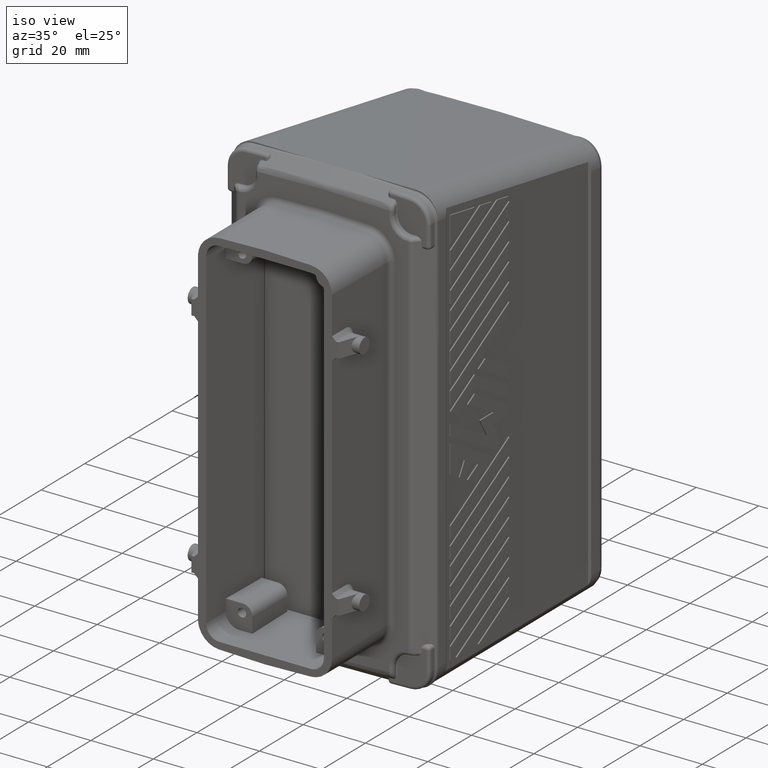
[diagram: clean part render]
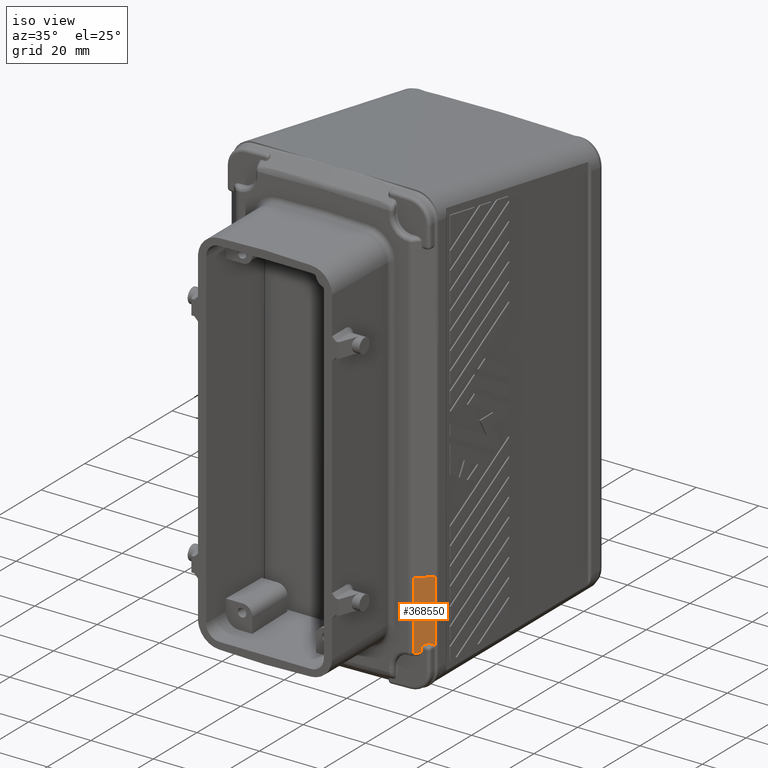
[diagram: same view with one face highlighted and labeled with its STEP entity id]
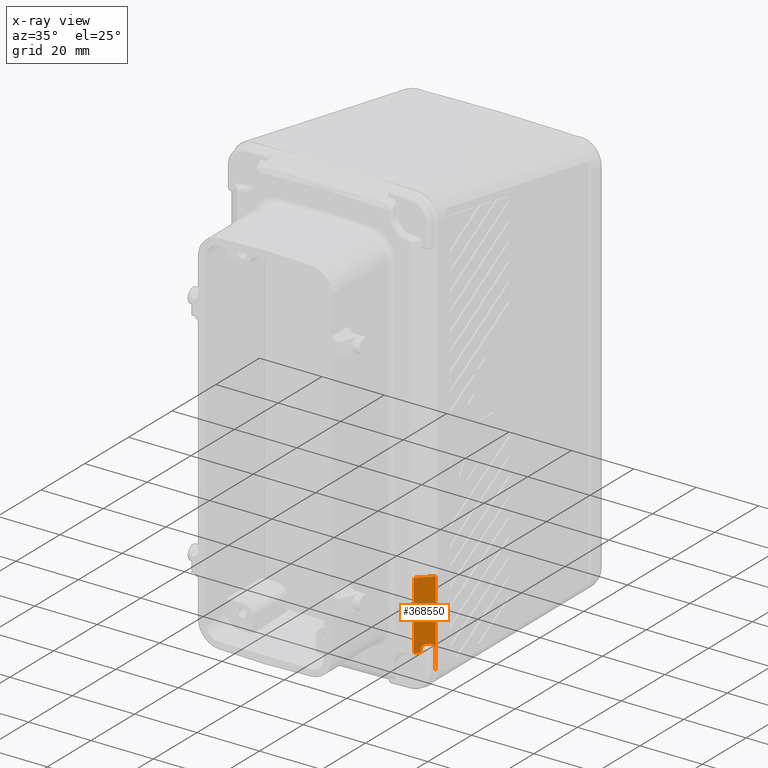
[diagram: x-ray of the same camera — body ghosted, the highlighted face saturated]
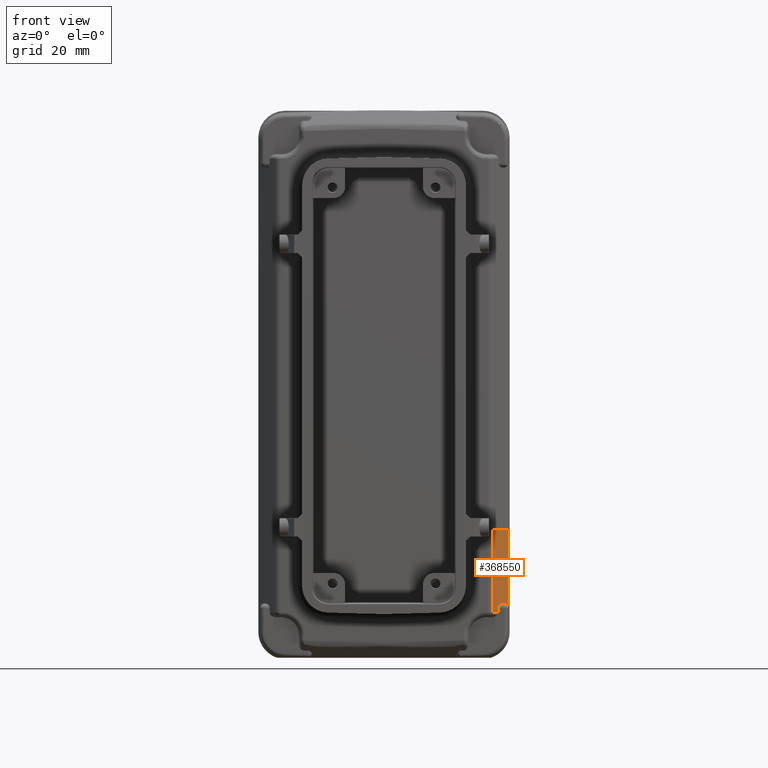
[diagram: same view with one face highlighted and labeled with its STEP entity id]
A machine part, iso view. The second image highlights one B-rep face of the part: STEP entity #368550.
The next image is the same camera in x-ray: the body ghosted, the highlighted face saturated — about 0% of this face is hidden behind the body in this view.
A second angle (front view) of the same face is appended — the face is thin or edge-on in the first view.
In plain terms, the highlighted face is a freeform B-spline surface patch.
Its self-contained STEP definition (entity closure, byte-faithful):
#58550=CARTESIAN_POINT('',(76.5402346562455,48.4487387738954,
-62.3659811338968));
#58560=VERTEX_POINT('',#58550);
#59210=CARTESIAN_POINT('',(76.5402359573822,48.4487401039122,
-63.5059833594889));
#59220=VERTEX_POINT('',#59210);
#59250=CARTESIAN_POINT('',(76.5402346562455,48.4487387738954,
-62.3659811338968));
#59260=CARTESIAN_POINT('',(76.5402346562455,48.4487387738954,
-62.3736356632042));
#59270=CARTESIAN_POINT('',(76.5402359166268,48.4487400342767,
-62.3812905630136));
#59280=CARTESIAN_POINT('',(76.5402359166268,48.4487400342767,
-62.4044156094056));
#59290=CARTESIAN_POINT('',(76.5402359166269,48.4487400342768,
-62.4198864970613));
#59300=CARTESIAN_POINT('',(76.5402359166268,48.4487400342767,
-62.4399823939955));
#59310=CARTESIAN_POINT('',(76.5402359166268,48.4487400342767,
-62.4446074032739));
#59320=CARTESIAN_POINT('',(76.5402359166268,48.4487400342767,
-62.4538574218307));
#59330=CARTESIAN_POINT('',(76.5402359166269,48.4487400342767,
-62.4584824311091));
#59340=CARTESIAN_POINT('',(76.5402359166268,48.4487400342767,
-62.4677324496659));
#59350=CARTESIAN_POINT('',(76.5402359166268,48.4487400342767,
-62.4723574589443));
#59360=CARTESIAN_POINT('',(76.5402359166268,48.4487400342767,
-62.4908575422928));
#59370=CARTESIAN_POINT('',(76.5402359166268,48.4487400342767,
-62.5186076904331));
#59380=CARTESIAN_POINT('',(76.5402359166269,48.4487400342768,
-62.5463578385733));
#59390=CARTESIAN_POINT('',(76.5402359166269,48.4487400342768,
-62.5879830607837));
#59400=CARTESIAN_POINT('',(76.5402359166269,48.4487400342768,
-62.6157332089239));
#59410=CARTESIAN_POINT('',(76.5402359166268,48.4487400342767,
-62.6862646004196));
#59420=CARTESIAN_POINT('',(76.5402359166268,48.4487400342767,
-62.729045843775));
#59430=CARTESIAN_POINT('',(76.5402359166268,48.4487400342768,
-62.8146083304858));
#59440=CARTESIAN_POINT('',(76.5402359166268,48.4487400342768,
-62.8573895738412));
#59450=CARTESIAN_POINT('',(76.5402359166269,48.4487400342768,
-62.9071083311143));
#59460=CARTESIAN_POINT('',(76.5402359166269,48.4487400342768,
-62.9140458450319));
#59470=CARTESIAN_POINT('',(76.5402359167121,48.448740034362,
-62.9286370276057));
#59480=CARTESIAN_POINT('',(76.5402359652854,48.4487400833249,
-62.9362906968723));
#59490=CARTESIAN_POINT('',(76.5402359654545,48.44874008343,
-62.9486031962657));
#59500=CARTESIAN_POINT('',(76.5402359655185,48.4487400834697,
-62.9532620276133));
#59510=CARTESIAN_POINT('',(76.5402359449706,48.4487400628856,
-62.9602333589533));
#59520=CARTESIAN_POINT('',(76.5402359450024,48.4487400629053,
-62.9625458589456));
#59530=CARTESIAN_POINT('',(76.5402359450659,48.4487400629448,
-62.9671708589302));
#59540=CARTESIAN_POINT('',(76.5402359450976,48.4487400629645,
-62.9694833589225));
#59550=CARTESIAN_POINT('',(76.5402359456138,48.4487400632851,
-63.0070614837973));
#59560=CARTESIAN_POINT('',(76.5402359460981,48.4487400635859,
-63.0423271086798));
#59570=CARTESIAN_POINT('',(76.5402359470668,48.4487400641876,
-63.1128583584448));
#59580=CARTESIAN_POINT('',(76.5402359475511,48.4487400644884,
-63.1481239833274));
#59590=CARTESIAN_POINT('',(76.5402359482776,48.4487400649397,
-63.2010224206511));
#59600=CARTESIAN_POINT('',(76.5402359485198,48.4487400650901,
-63.2186552330924));
#59610=CARTESIAN_POINT('',(76.5402359490041,48.4487400653909,
-63.2539208579749));
#59620=CARTESIAN_POINT('',(76.5402359492463,48.4487400655413,
-63.2715536704162));
#59630=CARTESIAN_POINT('',(76.5402359497306,48.4487400658422,
-63.3068192952987));
#59640=CARTESIAN_POINT('',(76.540235950215,48.448740066143,
-63.3420849201812));
#59650=CARTESIAN_POINT('',(76.5402359506993,48.4487400664439,
-63.3773505450637));
#59660=CARTESIAN_POINT('',(76.540235951005,48.4487400666337,
-63.3996083574896));
#59670=CARTESIAN_POINT('',(76.5402359510685,48.4487400666732,
-63.4042333574741));
#59680=CARTESIAN_POINT('',(76.5402359511956,48.4487400667521,
-63.4134833574433));
#59690=CARTESIAN_POINT('',(76.5402359512591,48.4487400667916,
-63.4181083574279));
#59700=CARTESIAN_POINT('',(76.5402359513861,48.4487400668705,
-63.4273583573971));
#59710=CARTESIAN_POINT('',(76.5402359514496,48.4487400669099,
-63.4319833573817));
#59720=CARTESIAN_POINT('',(76.54023595451,48.4487400688108,
-63.654809995715));
#59730=CARTESIAN_POINT('',(76.5402359575068,48.4487400706722,
-63.8730116340638));
#59740=CARTESIAN_POINT('',(76.5402359605036,48.4487400725336,
-64.0912132724126));
#59750=(BOUNDED_CURVE() B_SPLINE_CURVE(3,(#59250,#59260,#59270,#59280,
#59290,#59300,#59310,#59320,#59330,#59340,#59350,#59360,#59370,#59380,
#59390,#59400,#59410,#59420,#59430,#59440,#59450,#59460,#59470,#59480,
#59490,#59500,#59510,#59520,#59530,#59540,#59550,#59560,#59570,#59580,
#59590,#59600,#59610,#59620,#59630,#59640,#59650,#59660,#59670,#59680,
#59690,#59700,#59710,#59720,#59730,#59740),.UNSPECIFIED.,.F.,.F.) 
B_SPLINE_CURVE_WITH_KNOTS((4,2,2,2,2,2,1,2,2,2,2,2,2,2,2,2,2,2,2,2,1,2,2
,2,2,4),(0.,0.0229624762491589,0.069375139297998,0.0832501671575976,
0.0971251950171972,0.111000222876798,0.152625445160319,0.194250667443841
,0.277501112010883,0.405844842302735,0.534188572594587,0.555001114383989
,0.577962118521094,0.591938612564036,0.598876112540925,0.605813612517813
,0.711610487165368,0.817407361812924,0.870305799136701,0.923204236460479
,0.976102673784256,1.02900111110803,1.0428761110618,1.05675111101558,
1.07062611096936,1.72523102601566),.UNSPECIFIED.) CURVE() 
GEOMETRIC_REPRESENTATION_ITEM() RATIONAL_B_SPLINE_CURVE((
0.999999999999999,0.999999999999999,0.999999999999999,0.999999999999999,
0.999999999999999,0.999999999999999,0.999999999999999,0.999999999999999,
0.999999999999999,0.999999999999999,0.999999999999999,0.999999999999999,
0.999999999999999,0.999999999999999,0.999999999999999,0.999999999999999,
0.999999999999999,0.999999999999999,0.999999999999999,0.999999999999999,
0.999999999999999,0.999999999999999,0.999999999999999,0.999999999999999,
0.999999999999999,0.999999999999999,0.999999999999999,0.999999999999999,
0.999999999999999,0.999999999999999,0.999999999999999,0.999999999999999,
0.999999999999999,0.999999999999999,0.999999999999999,0.999999999999999,
0.999999999999999,0.999999999999999,0.999999999999999,0.999999999999999,
0.999999999999999,0.999999999999999,0.999999999999999,0.999999999999999,
0.999999999999999,0.999999999999999,0.999999999999999,0.999999999999999,
0.999999999999999,0.999999999999999)) REPRESENTATION_ITEM(''));
#59760=EDGE_CURVE('',#58560,#59220,#59750,.T.);
#121510=CARTESIAN_POINT('',(79.2449359548164,51.1534400724663,
-62.3659811001425));
#121520=VERTEX_POINT('',#121510);
#122180=CARTESIAN_POINT('',(77.9449309657198,49.8534350833697,
-61.065978276891));
#122190=VERTEX_POINT('',#122180);
#122220=CARTESIAN_POINT('',(79.2449359548164,51.1534400724663,
-62.3659811001425));
#122230=CARTESIAN_POINT('',(79.2449360690474,51.1534401866973,
-62.3566210450469));
#122240=CARTESIAN_POINT('',(79.2448364240654,51.1533405417153,
-62.3472585595222));
#122250=CARTESIAN_POINT('',(79.2439869250268,51.1524910426767,
-62.3079353325522));
#122260=CARTESIAN_POINT('',(79.2423005523836,51.1508046700335,
-62.2780121522476));
#122270=CARTESIAN_POINT('',(79.2368957534066,51.1453998710565,
-62.2185467076133));
#122280=CARTESIAN_POINT('',(79.2331713259108,51.1416754435607,
-62.1889882551432));
#122290=CARTESIAN_POINT('',(79.2225299530759,51.1310340707258,
-62.1227378653059));
#122300=CARTESIAN_POINT('',(79.2150150025251,51.123519120175,
-62.0862410038128));
#122310=CARTESIAN_POINT('',(79.1971206185741,51.105624736224,
-62.0146902619434));
#122320=CARTESIAN_POINT('',(79.1867283112384,51.0952324288883,
-61.9796517234777));
#122330=CARTESIAN_POINT('',(79.1633600656991,51.071864183349,
-61.9112698050236));
#122340=CARTESIAN_POINT('',(79.150374662685,51.0588787803349,
-61.877967603141));
#122350=CARTESIAN_POINT('',(79.1221368131703,51.0306409308202,
-61.8133006278199));
#122360=CARTESIAN_POINT('',(79.1068863681805,51.0153904858304,
-61.7819877622292));
#122370=CARTESIAN_POINT('',(79.075004077274,50.9835081949239,
-61.7225101528667));
#122380=CARTESIAN_POINT('',(79.05844951353,50.9669536311799,
-61.6943212476025));
#122390=CARTESIAN_POINT('',(79.0237563178156,50.9322604354655,
-61.6398962287524));
#122400=CARTESIAN_POINT('',(79.0056311413138,50.9141352589637,
-61.613708508423));
#122410=CARTESIAN_POINT('',(78.9680073423267,50.8765114599766,
-61.563281858868));
#122420=CARTESIAN_POINT('',(78.9485236115998,50.8570277292497,
-61.5390865918635));
#122430=CARTESIAN_POINT('',(78.9083880277767,50.8168921454266,
-61.4926468583694));
#122440=CARTESIAN_POINT('',(78.8877550885917,50.7962592062416,
-61.4704406829757));
#122450=CARTESIAN_POINT('',(78.8666664921988,50.7751706098487,
-61.4492372346476));
#122460=CARTESIAN_POINT('',(78.8468675520121,50.755371669662,
-61.4293304662038));
#122470=CARTESIAN_POINT('',(78.8266911126511,50.735195230301,
-61.4103320938915));
#122480=CARTESIAN_POINT('',(78.7855833788896,50.6940874965395,
-61.3739755285864));
#122490=CARTESIAN_POINT('',(78.7646684377601,50.67317255541,
-61.3566404540613));
#122500=CARTESIAN_POINT('',(78.7221862606146,50.6306903782645,
-61.3235717076317));
#122510=CARTESIAN_POINT('',(78.7006333146967,50.6091374323467,
-61.3078564681573));
#122520=CARTESIAN_POINT('',(78.6569715601929,50.5654756778428,
-61.2779939818344));
#122530=CARTESIAN_POINT('',(78.6348765994443,50.5433807170942,
-61.2638616648408));
#122540=CARTESIAN_POINT('',(78.590177043879,50.4986811615289,
-61.2371076852795));
#122550=CARTESIAN_POINT('',(78.5675849903046,50.4760891079545,
-61.2245007027493));
#122560=CARTESIAN_POINT('',(78.5219948392213,50.4304989568712,
-61.2007876818932));
#122570=CARTESIAN_POINT('',(78.499009324107,50.4075134417569,
-61.189691744218));
#122580=CARTESIAN_POINT('',(78.4526927672961,50.361196884946,
-61.168968148156));
#122590=CARTESIAN_POINT('',(78.429373663347,50.3378777809969,
-61.159348870096));
#122600=CARTESIAN_POINT('',(78.382449016853,50.2909531345029,
-61.141552225159));
#122610=CARTESIAN_POINT('',(78.3588536028756,50.2673577205255,
-61.1333810659564));
#122620=CARTESIAN_POINT('',(78.3061977607008,50.2147018783507,
-61.1168109980101));
#122630=CARTESIAN_POINT('',(78.27709776858,50.1856018862299,
-61.1087675422767));
#122640=CARTESIAN_POINT('',(78.2186333071935,50.1271374248434,
-61.094757265385));
#122650=CARTESIAN_POINT('',(78.1892855584794,50.0977896761293,
-61.0887966887631));
#122660=CARTESIAN_POINT('',(78.1303974244669,50.0389015421168,
-61.0789250851425));
#122670=CARTESIAN_POINT('',(78.1008752789414,50.0093793965913,
-61.0750188655073));
#122680=CARTESIAN_POINT('',(78.0417135309015,49.9502176485514,
-61.0692404186088));
#122690=CARTESIAN_POINT('',(78.0120917397999,49.9205958574498,
-61.0673708505616));
#122700=CARTESIAN_POINT('',(77.969943482161,49.8784475998109,
-61.0661538645566));
#122710=CARTESIAN_POINT('',(77.9574377379559,49.8659418556058,
-61.0659783021823));
#122720=CARTESIAN_POINT('',(77.9449309657198,49.8534350833697,
-61.065978276891));
#122730=B_SPLINE_CURVE_WITH_KNOTS('',3,(#122220,#122230,#122240,#122250,
#122260,#122270,#122280,#122290,#122300,#122310,#122320,#122330,#122340,
#122350,#122360,#122370,#122380,#122390,#122400,#122410,#122420,#122430,
#122440,#122450,#122460,#122470,#122480,#122490,#122500,#122510,#122520,
#122530,#122540,#122550,#122560,#122570,#122580,#122590,#122600,#122610,
#122620,#122630,#122640,#122650,#122660,#122670,#122680,#122690,#122700,
#122710,#122720),.UNSPECIFIED.,.F.,.F.,(4,2,2,2,2,2,2,2,2,2,2,3,2,2,2,2,
2,2,2,2,2,2,2,2,4),(0.,0.0247064259557174,0.10387712273773,
0.1832151953378,0.284040706617233,0.385476041652213,0.487728572698384,
0.590712115963269,0.690646876554927,0.791201559772082,0.892388494542853,
0.994082844653102,1.08949045867317,1.18524356160906,1.28132345188209,
1.37766765150405,1.47438767008732,1.57130465098991,1.66839961434464,
1.76563465609521,1.88446562347529,2.00342599430554,2.12248356852984,
2.24159306232301,2.29183882141486),.UNSPECIFIED.);
#122740=EDGE_CURVE('',#121520,#122190,#122730,.T.);
#289390=CARTESIAN_POINT('',(79.2452814816925,51.1548473126661,
-68.6940054009275));
#289400=VERTEX_POINT('',#289390);
#289430=CARTESIAN_POINT('',(74.6124518140559,46.5366080000221,
-69.2360344582603));
#289440=DIRECTION('',(0.705802317308688,0.703579505959485,
0.082577040849704));
#289450=VECTOR('',#289440,1.);
#289460=LINE('',#289430,#289450);
#289470=CARTESIAN_POINT('',(79.3336039059629,51.2428915796079,
-68.6836719063242));
#289480=VERTEX_POINT('',#289470);
#289490=EDGE_CURVE('',#289400,#289480,#289460,.T.);
#307850=CARTESIAN_POINT('',(79.3352106635589,51.2437147812089,
-41.7168830612788));
#307860=VERTEX_POINT('',#307850);
#334350=CARTESIAN_POINT('',(77.8402396572097,49.7487437748596,
-61.0659782774667));
#334360=CARTESIAN_POINT('',(77.8279111591545,49.7364152768044,
-61.065978304254));
#334370=CARTESIAN_POINT('',(77.8155836548922,49.7240877725421,
-61.0661487566998));
#334380=CARTESIAN_POINT('',(77.7736062624418,49.6821103800918,
-61.067343521929));
#334390=CARTESIAN_POINT('',(77.7439769811121,49.652481098762,
-61.0692015689984));
#334400=CARTESIAN_POINT('',(77.6847998778626,49.5933039955125,
-61.0749578647391));
#334410=CARTESIAN_POINT('',(77.6552698783106,49.5637739959605,
-61.0788534634299));
#334420=CARTESIAN_POINT('',(77.5963656922005,49.5048698098504,
-61.0887046774195));
#334430=CARTESIAN_POINT('',(77.5670097555345,49.4755138731844,
-61.0946554938636));
#334440=CARTESIAN_POINT('',(77.5085286033233,49.4170327209732,
-61.1086470706078));
#334450=CARTESIAN_POINT('',(77.479420119356,49.3879242370059,
-61.1166815927852));
#334460=CARTESIAN_POINT('',(77.4267479949351,49.335252112585,
-61.1332363112342));
#334470=CARTESIAN_POINT('',(77.4031448502247,49.3116489678746,
-61.1414009616967));
#334480=CARTESIAN_POINT('',(77.3562045646868,49.2647086823367,
-61.1591851903649));
#334490=CARTESIAN_POINT('',(77.332877559673,49.2413816773229,
-61.1687985634613));
#334500=CARTESIAN_POINT('',(77.2865450364699,49.1950491541198,
-61.1895109497822));
#334510=CARTESIAN_POINT('',(77.2635514621145,49.1720555797645,
-61.2006015859685));
#334520=CARTESIAN_POINT('',(77.2179450382915,49.1264491559414,
-61.2243046086087));
#334530=CARTESIAN_POINT('',(77.1953447776643,49.1038488953142,
-61.2369068974274));
#334540=CARTESIAN_POINT('',(77.15062866858,49.0591327862299,
-61.2636521177227));
#334550=CARTESIAN_POINT('',(77.1285253687589,49.0370294864089,
-61.2777803713597));
#334560=CARTESIAN_POINT('',(77.0848468025866,48.9933509202365,
-61.3076353672587));
#334570=CARTESIAN_POINT('',(77.0632853919659,48.9717895096159,
-61.3233471816394));
#334580=CARTESIAN_POINT('',(77.0207861657726,48.9292902834225,
-61.3564097443106));
#334590=CARTESIAN_POINT('',(76.9998626493887,48.9083667670386,
-61.37374206101));
#334600=CARTESIAN_POINT('',(76.9587376600815,48.8672417777314,
-61.4100938149826));
#334610=CARTESIAN_POINT('',(76.9385525521536,48.8470566698035,
-61.4290901326989));
#334620=CARTESIAN_POINT('',(76.9187448911559,48.8272490088058,
-61.4489952121797));
#334630=CARTESIAN_POINT('',(76.8976462636467,48.8061503812966,
-61.4701976074325));
#334640=CARTESIAN_POINT('',(76.8770032841296,48.7855074017795,
-61.4924032109597));
#334650=CARTESIAN_POINT('',(76.8368476446716,48.7453517623215,
-61.5388428864171));
#334660=CARTESIAN_POINT('',(76.8173539190926,48.7258580367425,
-61.5630386538271));
#334670=CARTESIAN_POINT('',(76.7797102482974,48.6882143659474,
-61.6134674828636));
#334680=CARTESIAN_POINT('',(76.7615752161868,48.6700793338367,
-61.6396568598057));
#334690=CARTESIAN_POINT('',(76.7268625287819,48.6353666464318,
-61.6940864835797));
#334700=CARTESIAN_POINT('',(76.7102983445252,48.6188024621751,
-61.7222783198546));
#334710=CARTESIAN_POINT('',(76.6784016722578,48.5869057899077,
-61.7817543052566));
#334720=CARTESIAN_POINT('',(76.6631459188129,48.5716500364628,
-61.8130620144561));
#334730=CARTESIAN_POINT('',(76.6348966583197,48.5434007759697,
-61.8777190695338));
#334740=CARTESIAN_POINT('',(76.6219051648305,48.5304092824804,
-61.9110165048431));
#334750=CARTESIAN_POINT('',(76.5985239390453,48.5070280566952,
-61.9793895922237));
#334760=CARTESIAN_POINT('',(76.5881247602412,48.4966288778911,
-62.0144240280985));
#334770=CARTESIAN_POINT('',(76.5702159140113,48.4787200316612,
-62.0859675688436));
#334780=CARTESIAN_POINT('',(76.5626933769333,48.4711974945832,
-62.1224612978922));
#334790=CARTESIAN_POINT('',(76.5520393845765,48.4605435022264,
-62.1886982979252));
#334800=CARTESIAN_POINT('',(76.5483094284386,48.4568135460885,
-62.2182460230122));
#334810=CARTESIAN_POINT('',(76.5428921160634,48.4513962337132,
-62.277690737004));
#334820=CARTESIAN_POINT('',(76.5411987489343,48.4497028665842,
-62.307603899859));
#334830=CARTESIAN_POINT('',(76.5403366574885,48.4488407751384,
-62.3470311921963));
#334840=CARTESIAN_POINT('',(76.5402345423532,48.4487386600032,
-62.3565073961079));
#334850=CARTESIAN_POINT('',(76.5402346562455,48.4487387738954,
-62.3659811338968));
#334860=B_SPLINE_CURVE_WITH_KNOTS('',3,(#334350,#334360,#334370,#334380,
#334390,#334400,#334410,#334420,#334430,#334440,#334450,#334460,#334470,
#334480,#334490,#334500,#334510,#334520,#334530,#334540,#334550,#334560,
#334570,#334580,#334590,#334600,#334610,#334620,#334630,#334640,#334650,
#334660,#334670,#334680,#334690,#334700,#334710,#334720,#334730,#334740,
#334750,#334760,#334770,#334780,#334790,#334800,#334810,#334820,#334830,
#334840,#334850),.UNSPECIFIED.,.F.,.F.,(4,2,2,2,2,2,2,2,2,2,2,2,2,3,2,2,
2,2,2,2,2,2,2,2,4),(0.,0.0495294727887076,0.168667603371741,
0.287754003179117,0.406743381188319,0.525603509987656,0.622864864414529,
0.719986220225286,0.816929666009932,0.913676211439194,1.01004698103898,
1.10615348088627,1.20193321431269,1.29736746492135,1.39909377956557,
1.5003125800807,1.60089892983202,1.70086512567511,1.80385036511561,
1.90610458878183,2.00754146518069,2.10836819826529,2.18768267782254,
2.26682946728559,2.29183592140057),.UNSPECIFIED.);
#334870=CARTESIAN_POINT('',(77.8402396572097,49.7487437748596,
-61.0659782774667));
#334880=VERTEX_POINT('',#334870);
#334890=EDGE_CURVE('',#334880,#58560,#334860,.T.);
#344300=CARTESIAN_POINT('',(79.2452814816925,51.1548473126661,
-68.6940054009275));
#344310=CARTESIAN_POINT('',(79.2452680343475,51.1548339076713,
-68.6651408011706));
#344320=CARTESIAN_POINT('',(79.245261663535,51.1548182625727,
-68.6362412600188));
#344330=CARTESIAN_POINT('',(79.2452421215502,51.154752016157,
-68.5582964156949));
#344340=CARTESIAN_POINT('',(79.2452238741326,51.1546812155858,
-68.5091803677876));
#344350=CARTESIAN_POINT('',(79.2451787248182,51.1544959720751,
-68.4067509390806));
#344360=CARTESIAN_POINT('',(79.2451512815651,51.1543787342604,
-68.3534265141906));
#344370=CARTESIAN_POINT('',(79.2450918209087,51.1541211963753,
-68.2405497209737));
#344380=CARTESIAN_POINT('',(79.2450596440652,51.1539798030422,
-68.1809988597529));
#344390=CARTESIAN_POINT('',(79.2450221137044,51.1538157888949,
-68.102287158691));
#344400=CARTESIAN_POINT('',(79.2450133629751,51.1537776196371,
-68.0831221350718));
#344410=CARTESIAN_POINT('',(79.244997125209,51.1537069408508,
-68.0453465237931));
#344420=CARTESIAN_POINT('',(79.2449820928967,51.1536416592643,
-68.0081251812145));
#344430=CARTESIAN_POINT('',(79.2449694549794,51.1535870998086,
-67.9709060432007));
#344440=CARTESIAN_POINT('',(79.2449468681485,51.1534899937092,
-67.8959255420994));
#344450=CARTESIAN_POINT('',(79.2449364490903,51.1534461663789,
-67.8395781117926));
#344460=CARTESIAN_POINT('',(79.2449341196681,51.1534364128785,
-67.7549975792316));
#344470=CARTESIAN_POINT('',(79.2449346918913,51.1534388095412,
-67.7267840995545));
#344480=CARTESIAN_POINT('',(79.2449346918913,51.1534388095412,
-67.6703607536585));
#344490=CARTESIAN_POINT('',(79.2449346918913,51.1534388095412,
-67.6421444253721));
#344500=CARTESIAN_POINT('',(79.2449346918913,51.1534388095412,
-67.557500095729));
#344510=CARTESIAN_POINT('',(79.2449346918913,51.1534388095412,
-67.5010705426336));
#344520=CARTESIAN_POINT('',(79.2449346918913,51.1534388095412,
-67.3317818833474));
#344530=CARTESIAN_POINT('',(79.2449346918913,51.1534388095412,
-67.2189227771566));
#344540=CARTESIAN_POINT('',(79.2449346918913,51.1534388095412,
-66.8803454585842));
#344550=CARTESIAN_POINT('',(79.2449346918913,51.1534388095412,
-66.6546272462026));
#344560=CARTESIAN_POINT('',(79.2449346918912,51.1534388095412,
-66.1736161344884));
#344570=CARTESIAN_POINT('',(79.2449346918912,51.1534388095412,
-65.9183232351558));
#344580=CARTESIAN_POINT('',(79.2449346918913,51.1534388095412,
-65.6499096597953));
#344590=CARTESIAN_POINT('',(79.2449346918913,51.1534388095412,
-65.6367889837674));
#344600=CARTESIAN_POINT('',(79.2449346918913,51.1534388095412,
-65.6105476317117));
#344610=CARTESIAN_POINT('',(79.2449346918912,51.1534388095412,
-65.5974269556839));
#344620=CARTESIAN_POINT('',(79.2449346918913,51.1534388095412,
-65.5788392722755));
#344630=CARTESIAN_POINT('',(79.2449346918912,51.1534388095412,
-65.5733722648949));
#344640=CARTESIAN_POINT('',(79.2449346918913,51.1534388095412,
-65.560251588867));
#344650=CARTESIAN_POINT('',(79.2449346918913,51.1534388095412,
-65.5525979202197));
#344660=CARTESIAN_POINT('',(79.2449346918913,51.1534388095412,
-65.5372905829251));
#344670=CARTESIAN_POINT('',(79.2449346918913,51.1534388095412,
-65.5296369142778));
#344680=CARTESIAN_POINT('',(79.2449346918913,51.1534388095412,
-65.5065162391824));
#344690=CARTESIAN_POINT('',(79.2449346918913,51.1534388095412,
-65.4910492327342));
#344700=CARTESIAN_POINT('',(79.2449346918913,51.1534388095412,
-65.4624615511907));
#344710=CARTESIAN_POINT('',(79.2449346918913,51.1534388095412,
-65.4493408760952));
#344720=CARTESIAN_POINT('',(79.2449346918913,51.1534388095412,
-65.4230995259043));
#344730=CARTESIAN_POINT('',(79.2449346918913,51.1534388095412,
-65.4099788508089));
#344740=CARTESIAN_POINT('',(79.2449346918913,51.1534388095412,
-65.1541257804869));
#344750=CARTESIAN_POINT('',(79.2449346918913,51.1534388095412,
-64.9113933852603));
#344760=CARTESIAN_POINT('',(79.2449346918913,51.1534388095412,
-64.425928594807));
#344770=CARTESIAN_POINT('',(79.2449346918913,51.1534388095412,
-64.1831961995804));
#344780=CARTESIAN_POINT('',(79.2449346918913,51.1534388095412,
-63.7830156091695));
#344790=CARTESIAN_POINT('',(79.2449346918913,51.1534388095412,
-63.6255674139852));
#344800=CARTESIAN_POINT('',(79.2449346918913,51.1534388095412,
-63.3893951212088));
#344810=CARTESIAN_POINT('',(79.2449346918913,51.1534388095412,
-63.2319469260245));
#344820=CARTESIAN_POINT('',(79.2449346918913,51.1534388095412,
-63.0744987308402));
#344830=CARTESIAN_POINT('',(79.2449346918913,51.1534388095412,
-62.9695332830572));
#344840=CARTESIAN_POINT('',(79.2449346918913,51.1534388095412,
-62.9432919328663));
#344850=CARTESIAN_POINT('',(79.2449346918913,51.1534388095412,
-62.8908092324846));
#344860=CARTESIAN_POINT('',(79.2449346918913,51.1534388095412,
-62.8645678822937));
#344870=CARTESIAN_POINT('',(79.2449346918913,51.1534388095412,
-62.812085181912));
#344880=CARTESIAN_POINT('',(79.2449346918913,51.1534388095412,
-62.7858438317211));
#344890=CARTESIAN_POINT('',(79.2449346918913,51.1534388095412,
-62.6360498950301));
#344900=CARTESIAN_POINT('',(79.2449346918913,51.1534388095412,
-62.5124973085301));
#344910=CARTESIAN_POINT('',(79.2449346918913,51.1534388095412,
-62.3812905575757));
#344920=CARTESIAN_POINT('',(79.2449359548164,51.1534400724663,
-62.3736356407948));
#344930=CARTESIAN_POINT('',(79.2449359548164,51.1534400724663,
-62.3659811001425));
#344940=(BOUNDED_CURVE() B_SPLINE_CURVE(3,(#344300,#344310,#344320,
#344330,#344340,#344350,#344360,#344370,#344380,#344390,#344400,#344410,
#344420,#344430,#344440,#344450,#344460,#344470,#344480,#344490,#344500,
#344510,#344520,#344530,#344540,#344550,#344560,#344570,#344580,#344590,
#344600,#344610,#344620,#344630,#344640,#344650,#344660,#344670,#344680,
#344690,#344700,#344710,#344720,#344730,#344740,#344750,#344760,#344770,
#344780,#344790,#344800,#344810,#344820,#344830,#344840,#344850,#344860,
#344870,#344880,#344890,#344900,#344910,#344920,#344930),.UNSPECIFIED.,
.F.,.F.) B_SPLINE_CURVE_WITH_KNOTS((4,2,2,2,2,2,1,2,2,2,2,2,2,2,2,2,2,2,
2,2,2,2,2,2,2,2,1,2,2,2,2,2,4),(0.,0.0864312498024793,0.233678490550959,
0.393620781559986,0.572281908922516,0.629793250495969,0.685649534054459,
0.741505817612949,0.910698660324433,0.995333785953576,1.0799782232727,
1.24926709791094,1.58784484718735,2.26500034574024,3.0308800180119,
3.07024209616789,3.10960417432389,3.12600521732929,3.14896625247988,
3.17192725846337,3.21832827789184,3.25769030324945,3.29705232860707,
4.02524951560594,4.75344670260481,5.22579128901325,5.46196358221746,
5.69813587542168,5.7768599261369,5.85558397685214,5.93430802756737,
6.30496578773898,6.32792828114353),.UNSPECIFIED.) CURVE() 
GEOMETRIC_REPRESENTATION_ITEM() RATIONAL_B_SPLINE_CURVE((
0.999999999999996,0.999999999999996,0.999999999999996,0.999999999999996,
0.999999999999996,0.999999999999996,0.999999999999996,0.999999999999996,
0.999999999999996,0.999999999999996,0.999999999999996,0.999999999999996,
0.999999999999996,0.999999999999996,0.999999999999996,0.999999999999996,
0.999999999999996,0.999999999999996,0.999999999999996,0.999999999999996,
0.999999999999996,0.999999999999996,0.999999999999996,0.999999999999996,
0.999999999999996,0.999999999999996,0.999999999999996,0.999999999999996,
0.999999999999996,0.999999999999996,0.999999999999996,0.999999999999996,
0.999999999999996,0.999999999999996,0.999999999999996,0.999999999999996,
0.999999999999996,0.999999999999996,0.999999999999996,0.999999999999996,
0.999999999999996,0.999999999999996,0.999999999999996,0.999999999999996,
0.999999999999996,0.999999999999996,0.999999999999996,0.999999999999996,
0.999999999999996,0.999999999999996,0.999999999999996,0.999999999999996,
0.999999999999996,0.999999999999996,0.999999999999996,0.999999999999996,
0.999999999999996,0.999999999999996,0.999999999999996,0.999999999999996,
0.999999999999996,0.999999999999996,0.999999999999996,0.999999999999996)
) REPRESENTATION_ITEM(''));
#344950=EDGE_CURVE('',#289400,#121520,#344940,.T.);
#367380=CARTESIAN_POINT('',(65.891902877689,37.84352303575,
-70.4964322239462));
#367390=CARTESIAN_POINT('',(65.891902877689,37.84352303575,
-70.416393505906));
#367400=CARTESIAN_POINT('',(65.891902877689,37.84352303575,
-70.3363547878658));
#367410=CARTESIAN_POINT('',(65.891902877689,37.84352303575,
-69.4269322095447));
#367420=CARTESIAN_POINT('',(65.9347686812981,37.843272798948,
-68.1138024778998));
#367430=CARTESIAN_POINT('',(65.934768681298,37.843272798948,
-55.1634154880463));
#367440=CARTESIAN_POINT('',(65.934768681298,37.843272798948,
-42.5584379369365));
#367450=CARTESIAN_POINT('',(65.9347686812979,37.8432727989479,
-17.3485768344798));
#367460=CARTESIAN_POINT('',(65.9347686812979,37.8432727989479,
-4.74369328313277));
#367470=CARTESIAN_POINT('',(65.9347686812978,37.8432727989479,
8.20671029345203));
#367480=CARTESIAN_POINT('',(65.891889161275,37.8435230352266,
9.52026053795873));
#367490=CARTESIAN_POINT('',(65.891889161275,37.8435230352266,
10.3499099844663));
#367500=CARTESIAN_POINT('',(86.861959627238,58.7475379503642,
-67.8925253481125));
#367510=CARTESIAN_POINT('',(86.861959627238,58.7475379503642,
-67.8366720112091));
#367520=CARTESIAN_POINT('',(86.861959627238,58.7475379503642,
-67.8039791136163));
#367530=CARTESIAN_POINT('',(86.861959627238,58.7475379503642,
-67.791420333539));
#367540=CARTESIAN_POINT('',(86.8393853332545,58.7478894509043,
-68.1138024778997));
#367550=CARTESIAN_POINT('',(86.8393853332545,58.7478894509043,
-55.1634154880462));
#367560=CARTESIAN_POINT('',(86.8393853332544,58.7478894509044,
-42.5584379369364));
#367570=CARTESIAN_POINT('',(86.8393853332543,58.7478894509044,
-17.3485768344797));
#367580=CARTESIAN_POINT('',(86.8393853332543,58.7478894509044,
-4.74369328313267));
#367590=CARTESIAN_POINT('',(86.8393853332542,58.7478894509044,
8.20671029345213));
#367600=CARTESIAN_POINT('',(86.8619668506729,58.7475379510994,
7.88422487640103));
#367610=CARTESIAN_POINT('',(86.8619668506729,58.7475379510994,
7.89568198986153));
#367620=B_SPLINE_SURFACE_WITH_KNOTS('',3,1,((#367380,#367500),(#367390,
#367510),(#367400,#367520),(#367410,#367530),(#367420,#367540),(#367430,
#367550),(#367440,#367560),(#367450,#367570),(#367460,#367580),(#367470,
#367590),(#367480,#367600),(#367490,#367610)),.UNSPECIFIED.,.F.,.F.,.F.,
(4,2,2,2,2,4),(2,2),(-0.1,0.,1.03622831623089,38.8511609695603,
76.6658116236011,77.7023716993147),(-1.73866704021483,2.44225629017645),
.UNSPECIFIED.);
#367630=CARTESIAN_POINT('',(75.5675629063031,47.4760670239551,
-63.5059833571705));
#367640=DIRECTION('',(0.707106770689773,0.707106791683322,
-1.68540236285421E-9));
#367650=VECTOR('',#367640,1.);
#367660=LINE('',#367630,#367650);
#367670=CARTESIAN_POINT('',(75.2138903252479,47.1223944323996,
-63.5059833563275));
#367680=VERTEX_POINT('',#367670);
#367690=EDGE_CURVE('',#367680,#59220,#367660,.T.);
#367700=ORIENTED_EDGE('',*,*,#367690,.T.);
#367710=CARTESIAN_POINT('',(75.200072005551,47.1223775758439,
-120.147633085673));
#367720=CARTESIAN_POINT('',(75.2000720055509,47.1223775758439,
-109.769750406924));
#367730=CARTESIAN_POINT('',(75.200072005551,47.1223775758439,
-99.8666344812693));
#367740=CARTESIAN_POINT('',(75.200072005551,47.1223775758439,
-88.4027951751558));
#367750=CARTESIAN_POINT('',(75.200072005551,47.1223775758439,
-85.2595159510506));
#367760=CARTESIAN_POINT('',(75.200072005551,47.1223775758439,
-78.2018939538654));
#367770=CARTESIAN_POINT('',(75.200072005551,47.1223775758439,
-73.5239885857765));
#367780=CARTESIAN_POINT('',(75.200072005551,47.1223775758439,
-68.7009627315262));
#367790=CARTESIAN_POINT('',(75.2138903199992,47.1223944376491,
-68.1138024778997));
#367800=CARTESIAN_POINT('',(75.2138903199991,47.1223944376491,
-55.1634154880463));
#367810=CARTESIAN_POINT('',(75.2138903199991,47.1223944376491,
-42.5584379369365));
#367820=CARTESIAN_POINT('',(75.213890319999,47.1223944376491,
-17.3485768344797));
#367830=CARTESIAN_POINT('',(75.213890319999,47.1223944376491,
-4.74369328313277));
#367840=CARTESIAN_POINT('',(75.2138903199989,47.1223944376491,
8.20671029345203));
#367850=CARTESIAN_POINT('',(75.2000675838975,47.1223775758791,
8.79405856250052));
#367860=CARTESIAN_POINT('',(75.2000675838975,47.1223775758791,
13.6172337161823));
#367870=CARTESIAN_POINT('',(75.2000675838975,47.1223775758791,
18.2951390909248));
#367880=CARTESIAN_POINT('',(75.2000675838975,47.1223775758791,
25.3527610693004));
#367890=CARTESIAN_POINT('',(75.2000675838975,47.1223775758791,
28.4960403061372));
#367900=CARTESIAN_POINT('',(75.2000675838975,47.1223775758791,
39.9598795663204));
#367910=CARTESIAN_POINT('',(75.2000675838975,47.1223775758791,
49.8629954949083));
#367920=CARTESIAN_POINT('',(75.2000675838975,47.1223775758791,
60.2408781950686));
#367930=B_SPLINE_CURVE_WITH_KNOTS('',3,(#367710,#367720,#367730,#367740,
#367750,#367760,#367770,#367780,#367790,#367800,#367810,#367820,#367830,
#367840,#367850,#367860,#367870,#367880,#367890,#367900,#367910,#367920)
,.UNSPECIFIED.,.F.,.F.,(4,2,2,2,2,2,2,2,2,2,4),(-27.642929986771,
-14.6061203335317,-9.6811714685812,0.,1.03622831623089,38.8511609695603,
76.6658116236011,77.7023716993147,87.3835428289687,92.3084914617995,
105.345300355878),.UNSPECIFIED.);
#367940=CARTESIAN_POINT('',(75.2138903200011,47.1223944376511,
-41.7168830612788));
#367950=VERTEX_POINT('',#367940);
#367960=EDGE_CURVE('',#367680,#367950,#367930,.T.);
#367970=ORIENTED_EDGE('',*,*,#367960,.F.);
#367980=CARTESIAN_POINT('',(79.3352106635589,51.243714781209,
-41.7168830612788));
#367990=DIRECTION('',(-0.707106781186539,-0.707106781186556,
-1.7067380423117E-14));
#368000=VECTOR('',#367990,1.);
#368010=LINE('',#367980,#368000);
#368020=EDGE_CURVE('',#307860,#367950,#368010,.T.);
#368030=ORIENTED_EDGE('',*,*,#368020,.T.);
#368040=CARTESIAN_POINT('',(79.3336039059634,51.2428915796084,
-68.683671906324));
#368050=CARTESIAN_POINT('',(79.33361530114,51.2429029388978,
-68.6103770662689));
#368060=CARTESIAN_POINT('',(79.3338222170918,51.2430593765412,
-68.5314323187783));
#368070=CARTESIAN_POINT('',(79.3342934694779,51.2433746935915,
-68.3791932033959));
#368080=CARTESIAN_POINT('',(79.3345552670996,51.2435361183136,
-68.3058988329172));
#368090=CARTESIAN_POINT('',(79.3347087846503,51.2435773194155,
-68.2211958265129));
#368100=CARTESIAN_POINT('',(79.3347496838824,51.2435882195146,
-68.198483192622));
#368110=CARTESIAN_POINT('',(79.3348925316984,51.2436263476777,
-68.1167233358756));
#368120=CARTESIAN_POINT('',(79.334987361,51.2436518432487,
-68.0576459584449));
#368130=CARTESIAN_POINT('',(79.3351326883383,51.243692020378,
-67.9394442287034));
#368140=CARTESIAN_POINT('',(79.3351831243931,51.2437066351468,
-67.8802827456118));
#368150=CARTESIAN_POINT('',(79.3352116013765,51.243715040826,
-67.7916141779369));
#368160=CARTESIAN_POINT('',(79.3352106635595,51.2437147812094,
-67.7620652724855));
#368170=CARTESIAN_POINT('',(79.3352106635595,51.2437147812094,
-67.7030351757236));
#368180=CARTESIAN_POINT('',(79.3352106635596,51.2437147812094,
-67.6735601001397));
#368190=CARTESIAN_POINT('',(79.3352106635595,51.2437147812094,
-67.5261181497124));
#368200=CARTESIAN_POINT('',(79.3352106635596,51.2437147812094,
-67.4081645891058));
#368210=CARTESIAN_POINT('',(79.3352106635595,51.2437147812094,
-67.054303907286));
#368220=CARTESIAN_POINT('',(79.3352106635595,51.2437147812094,
-66.8183967860729));
#368230=CARTESIAN_POINT('',(79.3352106635595,51.2437147812094,
-66.1106754224333));
#368240=CARTESIAN_POINT('',(79.3352106635595,51.2437147812094,
-65.6388611800069));
#368250=CARTESIAN_POINT('',(79.3352106635595,51.2437147812093,
-63.2797899997307));
#368260=CARTESIAN_POINT('',(79.3352106635594,51.2437147812093,
-61.3925330618808));
#368270=CARTESIAN_POINT('',(79.3352106635593,51.2437147812092,
-55.7307622483313));
#368280=CARTESIAN_POINT('',(79.3352106635592,51.2437147812091,
-51.9562483726316));
#368290=CARTESIAN_POINT('',(79.335210663559,51.2437147812089,
-41.0259072676973));
#368300=CARTESIAN_POINT('',(79.3352106635588,51.2437147812088,
-33.8700800384627));
#368310=CARTESIAN_POINT('',(79.3352106635586,51.2437147812087,
-26.7142528092281));
#368320=(BOUNDED_CURVE() B_SPLINE_CURVE(3,(#368040,#368050,#368060,
#368070,#368080,#368090,#368100,#368110,#368120,#368130,#368140,#368150,
#368160,#368170,#368180,#368190,#368200,#368210,#368220,#368230,#368240,
#368250,#368260,#368270,#368280,#368290,#368300,#368310),.UNSPECIFIED.,
.F.,.F.) B_SPLINE_CURVE_WITH_KNOTS((4,2,2,2,2,2,2,2,2,2,2,2,2,4),(0.,
0.185971598919448,0.371943197838897,0.440066017669711,0.617134034466943,
0.79429821625795,0.882843182318304,0.971308118783291,1.32516786861429,
2.03288736827626,3.44832636760023,9.11008226932944,20.4335940727878,
41.9010192200132),.UNSPECIFIED.) CURVE() GEOMETRIC_REPRESENTATION_ITEM()
 RATIONAL_B_SPLINE_CURVE((0.999999999999999,0.999999999999999,
0.999999999999999,0.999999999999999,0.999999999999999,0.999999999999999,
0.999999999999999,0.999999999999999,0.999999999999999,0.999999999999999,
0.999999999999999,0.999999999999999,0.999999999999999,0.999999999999999,
0.999999999999999,0.999999999999999,0.999999999999999,0.999999999999999,
0.999999999999999,0.999999999999999,0.999999999999999,0.999999999999999,
0.999999999999999,0.999999999999999,0.999999999999999,0.999999999999999,
0.999999999999999,0.999999999999999)) REPRESENTATION_ITEM(''));
#368330=EDGE_CURVE('',#289480,#307860,#368320,.T.);
#368340=ORIENTED_EDGE('',*,*,#368330,.T.);
#368350=ORIENTED_EDGE('',*,*,#289490,.T.);
#368360=ORIENTED_EDGE('',*,*,#344950,.F.);
#368370=ORIENTED_EDGE('',*,*,#122740,.F.);
#368380=CARTESIAN_POINT('',(77.8402396572097,49.7487437748596,
-61.0659782774667));
#368390=CARTESIAN_POINT('',(77.8502385784343,49.7587426960842,
-61.0659782774667));
#368400=CARTESIAN_POINT('',(77.8602374652883,49.7687415829382,
-61.0659833571968));
#368410=CARTESIAN_POINT('',(77.8776860485489,49.7861901661988,
-61.0659833571968));
#368420=CARTESIAN_POINT('',(77.8851356764293,49.7936397940792,
-61.0659833571968));
#368430=CARTESIAN_POINT('',(77.9000349321822,49.8085390498321,
-61.0659833571968));
#368440=CARTESIAN_POINT('',(77.9074845600546,49.8159886777045,
-61.0659833571968));
#368450=CARTESIAN_POINT('',(77.9249331457114,49.8334372633613,
-61.0659833571968));
#368460=CARTESIAN_POINT('',(77.9349320397172,49.8434361573671,
-61.065978276891));
#368470=CARTESIAN_POINT('',(77.9449309657198,49.8534350833697,
-61.065978276891));
#368480=B_SPLINE_CURVE_WITH_KNOTS('',3,(#368380,#368390,#368400,#368410,
#368420,#368430,#368440,#368450,#368460,#368470),.UNSPECIFIED.,.F.,.F.,(
4,2,2,2,4),(0.,0.0424219749245103,0.0740280692739752,0.105634163589387,
0.148056148714252),.UNSPECIFIED.);
#368490=EDGE_CURVE('',#334880,#122190,#368480,.T.);
#368500=ORIENTED_EDGE('',*,*,#368490,.T.);
#368510=ORIENTED_EDGE('',*,*,#334890,.F.);
#368520=ORIENTED_EDGE('',*,*,#59760,.F.);
#368530=EDGE_LOOP('',(#368520,#368510,#368500,#368370,#368360,#368350,
#368340,#368030,#367970,#367700));
#368540=FACE_OUTER_BOUND('',#368530,.T.);
#368550=ADVANCED_FACE('',(#368540),#367620,.F.);